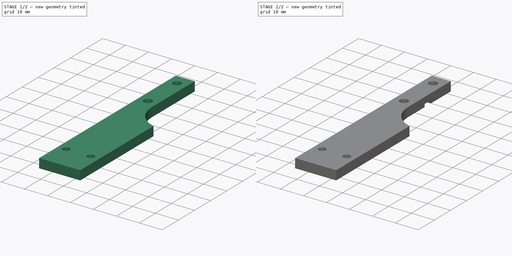
[diagram: build sequence overview — one tinted view per stage of 2, left to right]
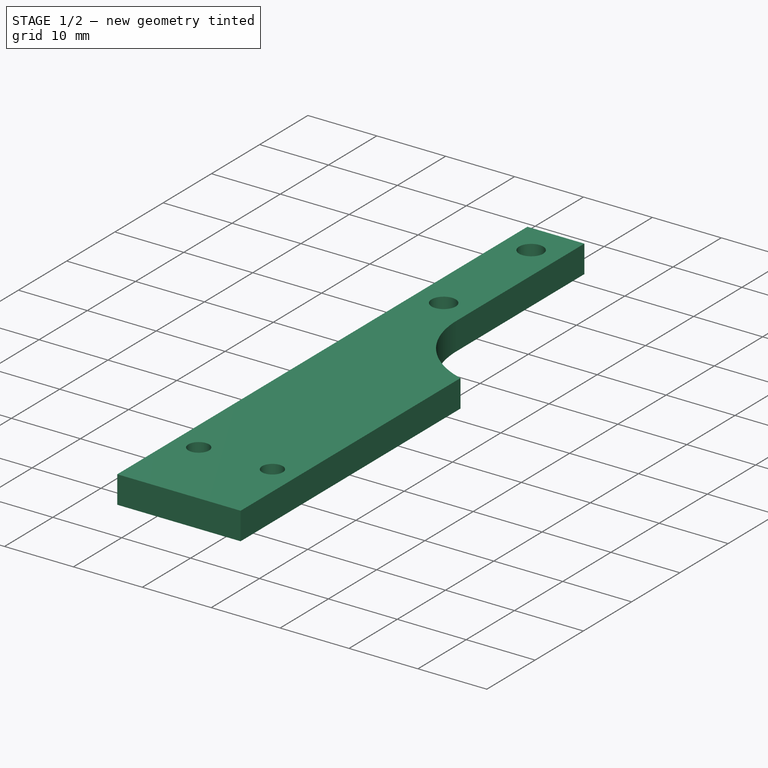
[diagram: stage 1 of 2 — iso view after this stage's code; geometry added in this stage tinted green]
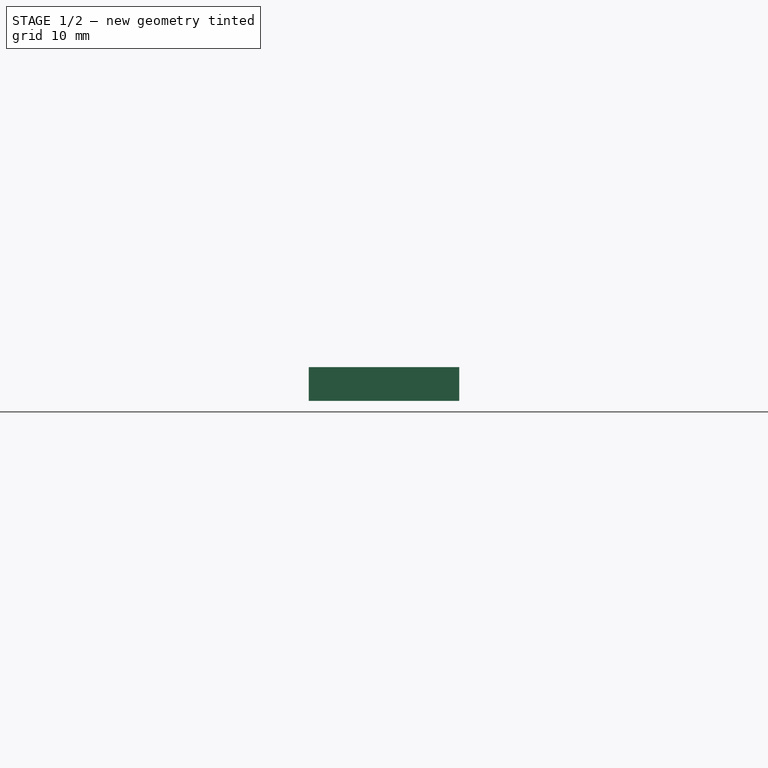
[diagram: stage 1 of 2 — front view after this stage's code; geometry added in this stage tinted green]
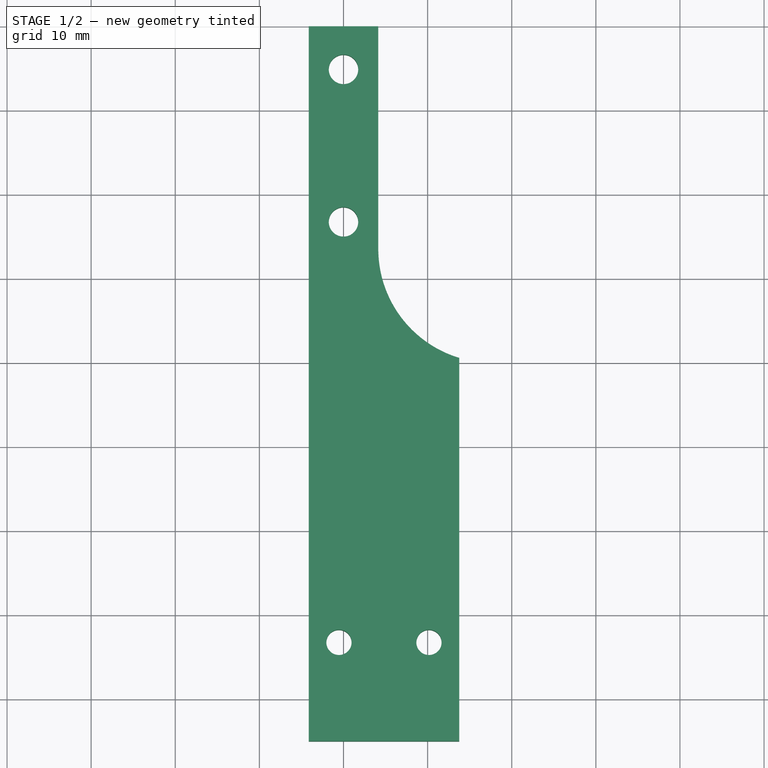
[diagram: stage 1 of 2 — top view after this stage's code; geometry added in this stage tinted green]
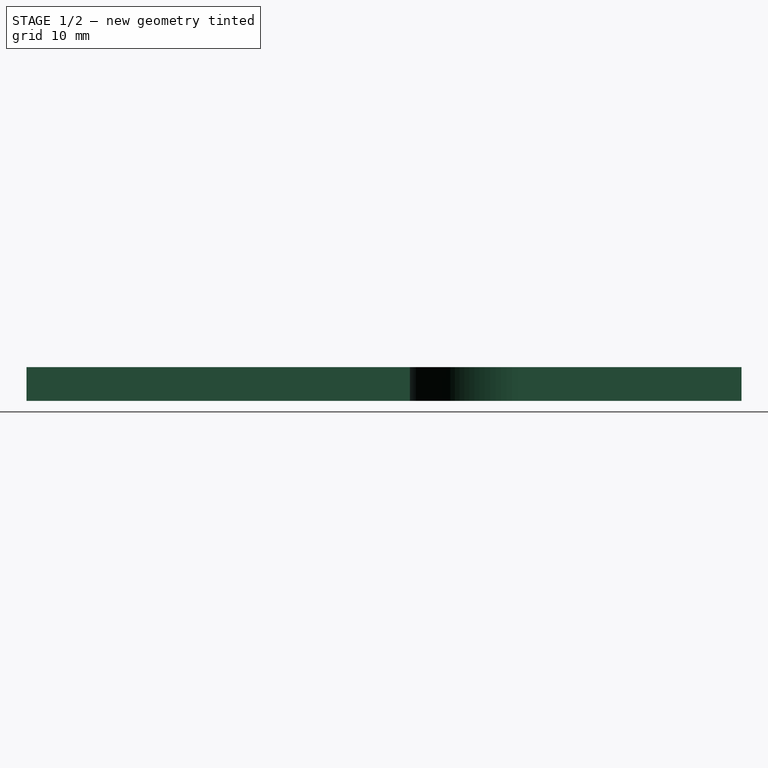
[diagram: stage 1 of 2 — right view after this stage's code; geometry added in this stage tinted green]
FCSTD DOCUMENT  (FreeCAD 1.1R40303 (Git))
Label: ender 3 btt eddy v2
License: All rights reserved
LicenseURL: https://en.wikipedia.org/wiki/All_rights_reserved
objects: Sketcher::SketchObject×3, PartDesign::Pocket×2, Part::Feature×1, PartDesign::SubShapeBinder×1, PartDesign::Pad×1, App::Point×1, PartDesign::Body×1
note: 18 computed .brp shape members not serialized (recipe doc carries the construction recipe); baked Part::Feature solids carry a one-line shape summary decoded from their .brp

FEATURE [Part::Feature] Part__Feature  label="Part 3"
  shape: bbox 35.62 x 75.83 x 18.9 mm, 43 faces (baked)
FEATURE [PartDesign::SubShapeBinder] Binder
  BindCopyOnChange = 0
  BindMode = 0
  ClaimChildren = false
  Context = -> Body [Binder.]
  Fuse = false
  MakeFace = true
  OffsetFill = false
  OffsetIntersection = false
  OffsetJoinType = 0
  OffsetOpenResult = false
  PartialLoad = false
  Refine = true
  Relative = true
  Support = -> [Part__Feature]
  _Version = 2
FEATURE [Sketcher::SketchObject] Sketch
  ArcFitTolerance = 1e-06
  AttachmentSupport = -> [XY_Plane]
  ExternalGeometry = -> [Binder]
  ExternalTypes = [0]
  FullyConstrained = false
  MakeInternals = false
  MapMode = 5
  sketch-geometry (6):
    g0: LineSegment StartX=-4.135 StartY=20 StartZ=0 EndX=-4.135 EndY=-65 EndZ=0
    g1: LineSegment StartX=-4.135 StartY=-65 StartZ=0 EndX=13.765 EndY=-65 EndZ=0
    g2: LineSegment StartX=13.765 StartY=-65 StartZ=0 EndX=13.765 EndY=-19.4284 EndZ=0
    g3: LineSegment StartX=4.135 StartY=20 StartZ=0 EndX=-4.135 EndY=20 EndZ=0
    g4: LineSegment StartX=4.135 StartY=20 StartZ=0 EndX=4.135 EndY=-6.62115 EndZ=0
    g5: ArcOfCircle CenterX=17.6549 CenterY=-6.4794 CenterZ=0 NormalX=0 NormalY=0 NormalZ=1 AngleXU=0 Radius=13.5206 StartAngle=3.15208 EndAngle=4.42056
  constraints (17):
    c: Coincident(g0,g1)
    c: Coincident(g1,g2)
    c: Coincident(g3,g0)
    c: Vertical(g0)
    c: Vertical(g2)
    c: Horizontal(g1)
    c: Horizontal(g3)
    c: PointOnObject(g-6,g0)
    c: PointOnObject(g-3,g3)
    c: Vertical(g4)
    c: PointOnObject(g-7,g4)
    c: Tangent(g5,g-8) = -1.5708
    c: Coincident(g5,g4)
    c: PointOnObject(g3,g4)
    c: Coincident(g5,g2)
    c: PointOnObject(g-5,g2)
    c: DistanceY(g0,g0) = 85
FEATURE [PartDesign::Pad] Pad
  Direction = (0,0,1)
  Length = 4
  Length2 = 10
  Profile = -> Sketch
  ReferenceAxis = -> Sketch [N_Axis]
  Refine = true
  Suppressed = false
  Type = 0
FEATURE [Sketcher::SketchObject] Sketch001
  ArcFitTolerance = 1e-06
  AttachmentSupport = -> [Pad]
  ExternalGeometry = -> [Binder]
  ExternalTypes = [0]
  FullyConstrained = true
  MakeInternals = false
  MapMode = 5
  Placement = pos=(0,0,4) rot=(0,0,1;0rad)
  sketch-geometry (4):
    g0: Circle CenterX=0 CenterY=14.875 CenterZ=0 NormalX=0 NormalY=0 NormalZ=1 AngleXU=0 Radius=1.75
    g1: Circle CenterX=0 CenterY=-3.255 CenterZ=0 NormalX=0 NormalY=0 NormalZ=1 AngleXU=0 Radius=1.75
    g2: Circle CenterX=-0.54 CenterY=-53.255 CenterZ=0 NormalX=0 NormalY=0 NormalZ=1 AngleXU=0 Radius=1.5
    g3: Circle CenterX=10.16 CenterY=-53.255 CenterZ=0 NormalX=0 NormalY=0 NormalZ=1 AngleXU=0 Radius=1.5
  constraints (10):
    c: Coincident(g0,g-3)
    c: Coincident(g1,g-4)
    c: Equal(g1,g0)
    c: Diameter(g0) = 3.5
    c: Horizontal(g3,g2)
    c: Equal(g2,g3)
    c: Diameter(g3) = 3
    c: Distance(g2,g-2) = 0.54
    c: Distance(g2,g3) = 10.7
    c: DistanceY(g2,g1) = 50
FEATURE [PartDesign::Pocket] Pocket
  BaseFeature = -> Pad
  Direction = (0,0,-1)
  Length = 5
  Length2 = 5
  Profile = -> Sketch001
  ReferenceAxis = -> Sketch001 [N_Axis]
  Refine = true
  Suppressed = false
  Type = 0
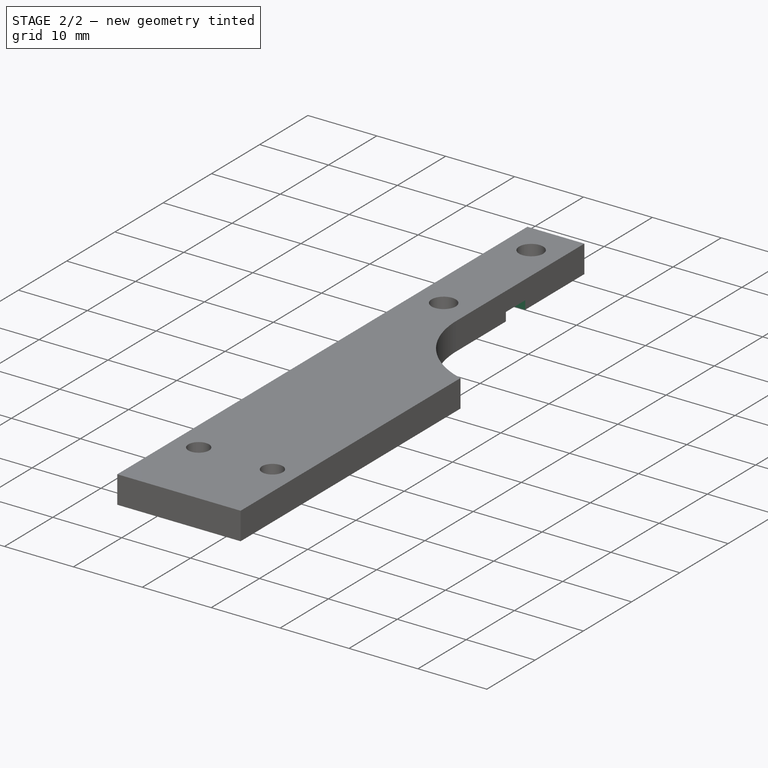
[diagram: stage 2 of 2 — iso view after this stage's code; geometry added in this stage tinted green]
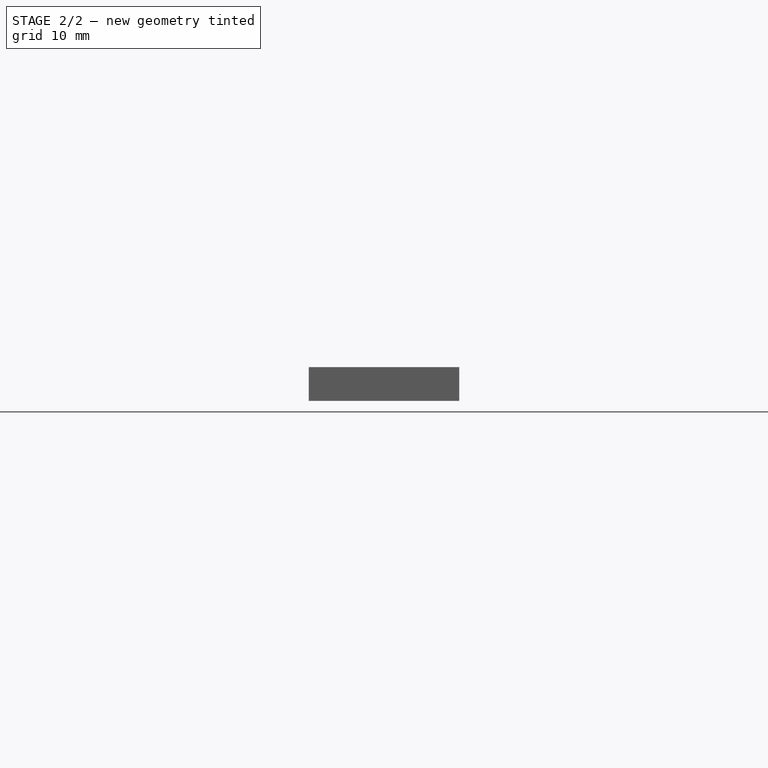
[diagram: stage 2 of 2 — front view after this stage's code; geometry added in this stage tinted green]
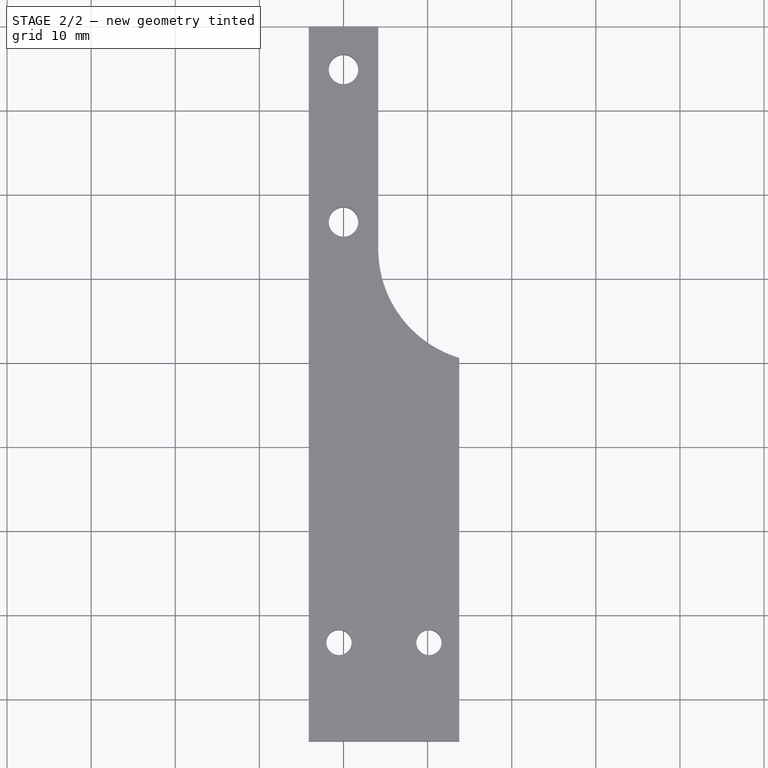
[diagram: stage 2 of 2 — top view after this stage's code; geometry added in this stage tinted green]
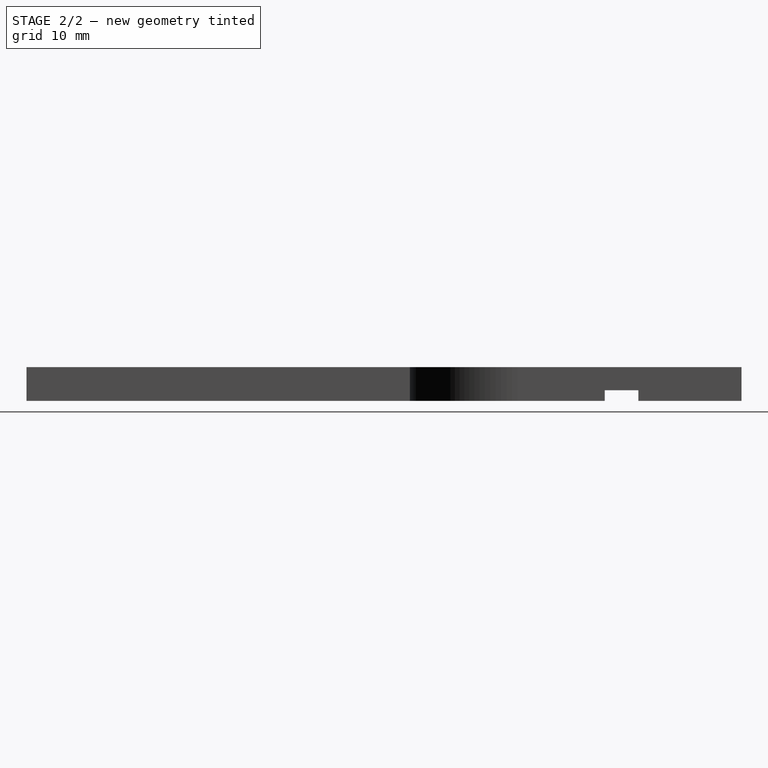
[diagram: stage 2 of 2 — right view after this stage's code; geometry added in this stage tinted green]
FEATURE [App::Point] Origin001  label="Origin"
  Role = Origin
FEATURE [Sketcher::SketchObject] Sketch002
  ArcFitTolerance = 1e-06
  AttachmentSupport = -> [Pocket]
  ExternalGeometry = -> [Pocket]
  ExternalTypes = [0]
  FullyConstrained = false
  MakeInternals = false
  MapMode = 5
  Placement = pos=(0,0,0) rot=(1,0,0;3.14159rad)
  sketch-geometry (4):
    g0: LineSegment StartX=-5.94656 StartY=-3.745 StartZ=0 EndX=-5.94656 EndY=-7.745 EndZ=0
    g1: LineSegment StartX=-5.94656 StartY=-7.745 StartZ=0 EndX=4.51351 EndY=-7.745 EndZ=0
    g2: LineSegment StartX=4.51351 StartY=-7.745 StartZ=0 EndX=4.51351 EndY=-3.745 EndZ=0
    g3: LineSegment StartX=4.51351 StartY=-3.745 StartZ=0 EndX=-5.94656 EndY=-3.745 EndZ=0
  constraints (10):
    c: Coincident(g0,g1)
    c: Coincident(g1,g2)
    c: Coincident(g2,g3)
    c: Coincident(g3,g0)
    c: Vertical(g0)
    c: Vertical(g2)
    c: Horizontal(g1)
    c: Horizontal(g3)
    c: DistanceY(g0,g0) = 4
    c: DistanceY(g2,g-3) = 7
FEATURE [PartDesign::Pocket] Pocket001
  BaseFeature = -> Pocket
  Direction = (0,0,1)
  Length = 1.25
  Length2 = 5
  Profile = -> Sketch002
  ReferenceAxis = -> Sketch002 [N_Axis]
  Refine = true
  Suppressed = false
  Type = 0
FEATURE [PartDesign::Body] Body
  AllowCompound = false
  Group = -> [Binder,Sketch,Pad,Sketch001,Pocket,Sketch002,Pocket001]
  Origin = -> Origin
  Tip = -> Pocket001
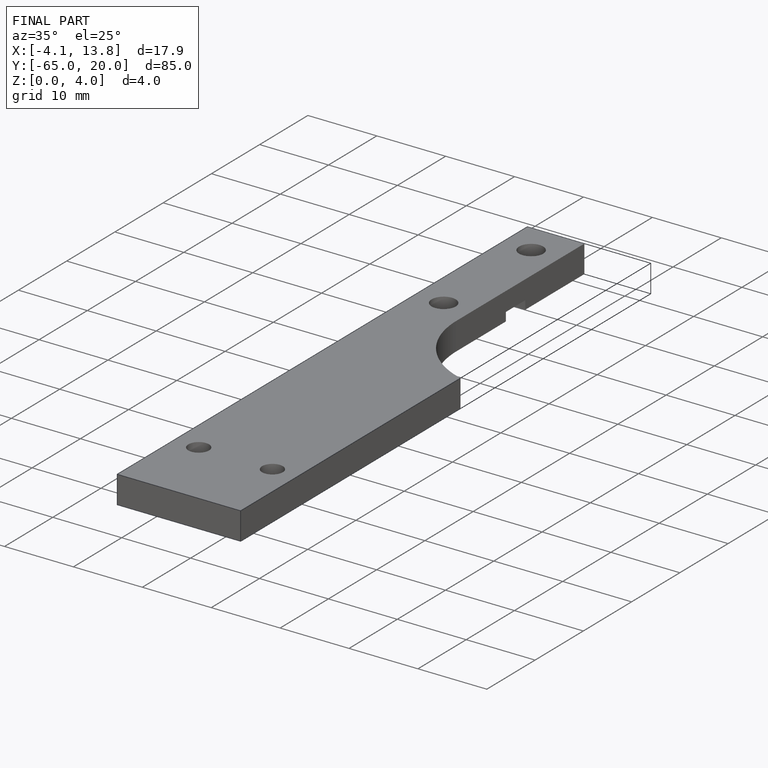
[diagram: finished part — iso view with bounding-box wireframe]
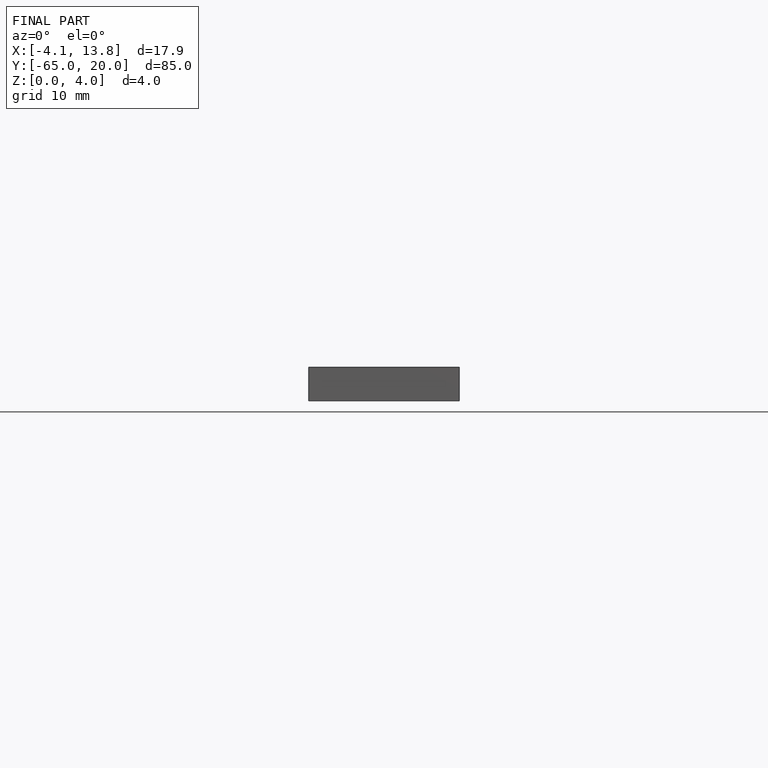
[diagram: finished part — front view with bounding-box wireframe]
